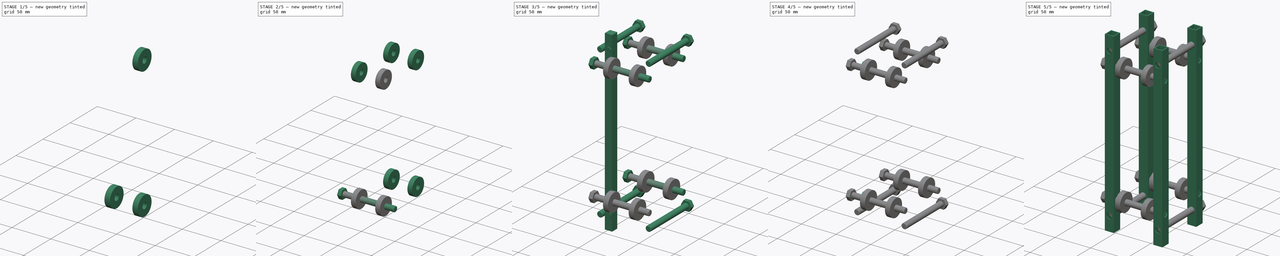
[diagram: build sequence overview — one tinted view per stage of 5, left to right]
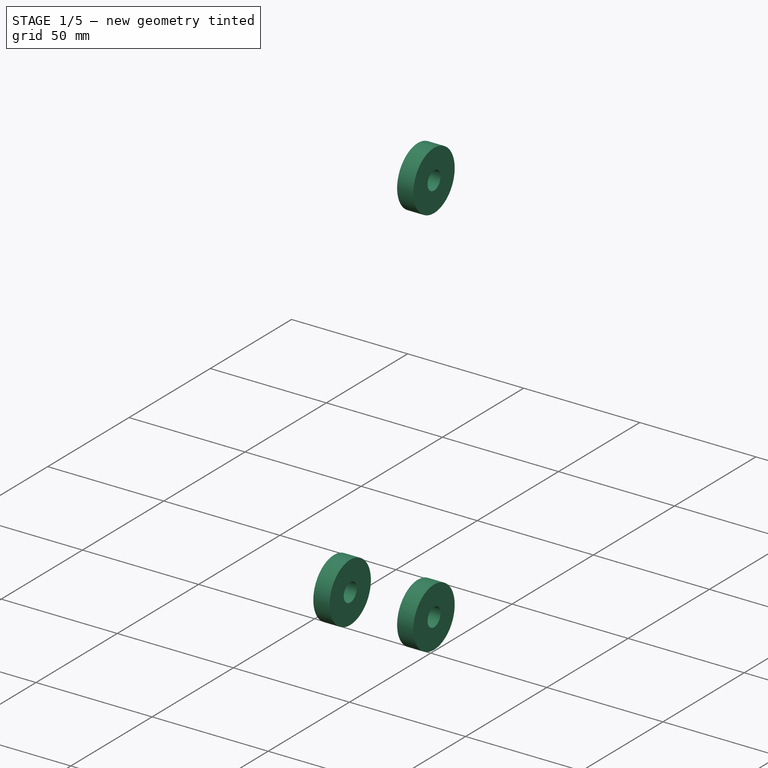
[diagram: stage 1 of 5 — iso view after this stage's code; geometry added in this stage tinted green]
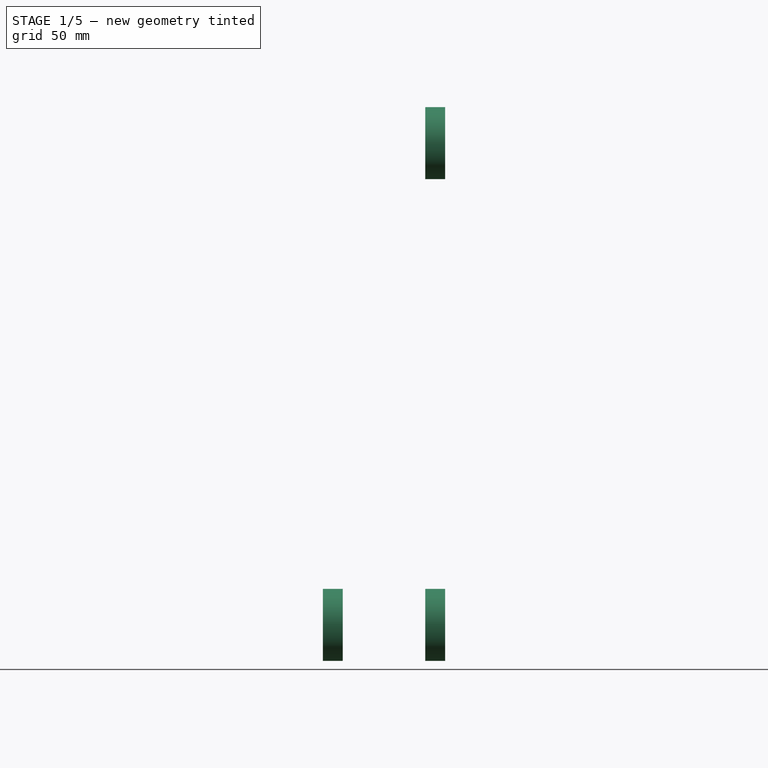
[diagram: stage 1 of 5 — front view after this stage's code; geometry added in this stage tinted green]
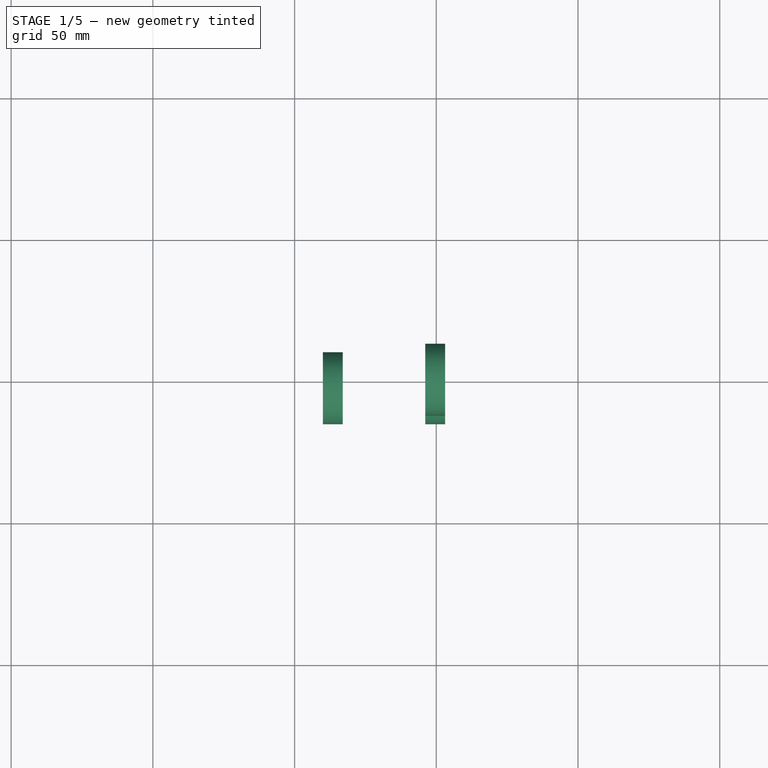
[diagram: stage 1 of 5 — top view after this stage's code; geometry added in this stage tinted green]
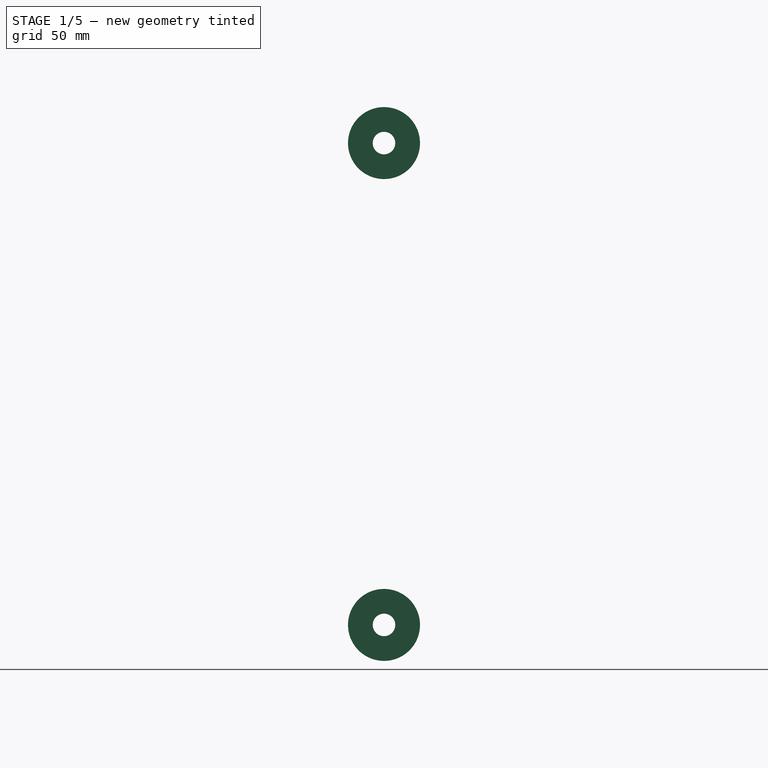
[diagram: stage 1 of 5 — right view after this stage's code; geometry added in this stage tinted green]
FCSTD DOCUMENT  (FreeCAD 0.18.4R)
Label: CARRITO
License: All rights reserved
LicenseURL: http://en.wikipedia.org/wiki/All_rights_reserved
objects: Part::Cut×16, Sketcher::SketchObject×10, Part::Extrusion×10, Part::Fillet×9, Part::Box×8, Part::Fuse×3, Part::MultiFuse×2
note: 58 computed .brp shape members not serialized (recipe doc carries the construction recipe); baked Part::Feature solids carry a one-line shape summary decoded from their .brp

FEATURE [Part::Box] Box  label="externo"
  AttacherType = Attacher::AttachEngine3D
  Height = 250
  Length = 12.7
  Width = 12.7
FEATURE [Sketcher::SketchObject] Sketch001
  MapMode = 5
  Placement = pos=(0,0,0) rot=(1,0,0;1.5708rad)
  Support = -> [Box]
  sketch-geometry (2):
    g0: Circle CenterX=6.35 CenterY=20 CenterZ=0 NormalX=0 NormalY=0 NormalZ=1 AngleXU=0 Radius=3.96875
    g1: Circle CenterX=6.35 CenterY=230 CenterZ=0 NormalX=0 NormalY=0 NormalZ=1 AngleXU=0 Radius=3.96875
  constraints (6):
    c: Radius(g0) = 3.96875
    c: DistanceX(g-1,g0) = 6.35
    c: DistanceY(g-1,g0) = 20
    c: Radius(g1) = 3.96875
    c: DistanceX(g-1,g1) = 6.35
    c: DistanceY(g0,g1) = 210
FEATURE [Part::Extrusion] Extrude
  Base = -> Sketch001
  Dir = (0,-1,2e-16)
  DirMode = 2
  FaceMakerClass = Part::FaceMakerBullseye
  LengthFwd = 12.7
  LengthRev = 0
  Reversed = true
  Solid = true
  Symmetric = false
FEATURE [Part::Box] Box001  label="interno"
  AttacherType = Attacher::AttachEngine3D
  Height = 250
  Length = 10.3
  Placement = pos=(1.2,1.2,0) rot=(0,0,1;0rad)
  Width = 10.3
FEATURE [Part::Cut] Cut
  Base = -> Box
  Tool = -> Box001
FEATURE [Part::Cut] Cut001
  Base = -> Cut
  Tool = -> Extrude
FEATURE [Sketcher::SketchObject] Sketch
  MapMode = 5
  Placement = pos=(12.7,0,0) rot=(0.57735,0.57735,0.57735;2.0944rad)
  Support = -> [Cut001]
  sketch-geometry (2):
    g0: Circle CenterX=6.35 CenterY=210 CenterZ=0 NormalX=0 NormalY=0 NormalZ=1 AngleXU=0 Radius=3.96875
    g1: Circle CenterX=6.35 CenterY=40 CenterZ=0 NormalX=0 NormalY=0 NormalZ=1 AngleXU=0 Radius=3.96875
  constraints (6):
    c: Equal(g0,g1)
    c: Radius(g1) = 3.96875
    c: DistanceX(g1,g0) = 0
    c: DistanceY(g-1,g1) = 40
    c: DistanceX(g-1,g1) = 6.35
    c: DistanceY(g1,g0) = 170
FEATURE [Part::Extrusion] Extrude001
  Base = -> Sketch
  Dir = (1,0,0)
  DirMode = 2
  FaceMakerClass = Part::FaceMakerBullseye
  LengthFwd = 12.7
  LengthRev = 0
  Reversed = true
  Solid = true
  Symmetric = false
FEATURE [Part::Cut] Cut013  label="Bal_ne"
  Base = -> Extrude
  Placement = pos=(46.1,-2.39,210) rot=(0,1,0;1.5708rad)
  Tool = -> Extrude001
FEATURE [Part::Cut] Cut014  label="Bal_sw"
  Base = -> Extrude
  Placement = pos=(10,-2.39,40) rot=(0,1,0;1.5708rad)
  Tool = -> Extrude001
FEATURE [Part::Cut] Cut015  label="Bal_se"
  Base = -> Extrude
  Placement = pos=(46.1,-2.39,40) rot=(0,1,0;1.5708rad)
  Tool = -> Extrude001
FEATURE [Part::Fuse] Fusion002  label="Bals_sur"
  Base = -> Cut014
  Tool = -> Cut015
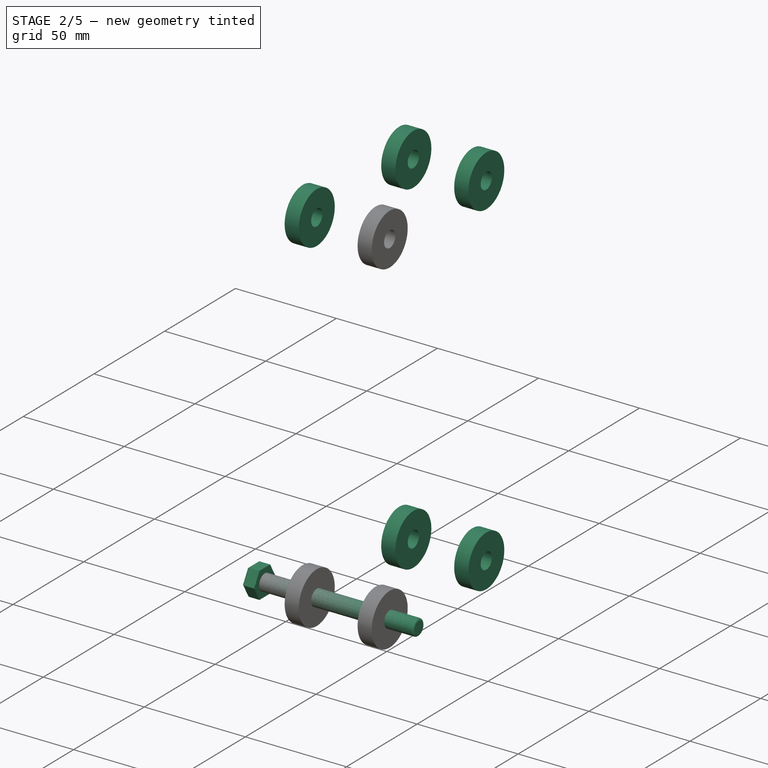
[diagram: stage 2 of 5 — iso view after this stage's code; geometry added in this stage tinted green]
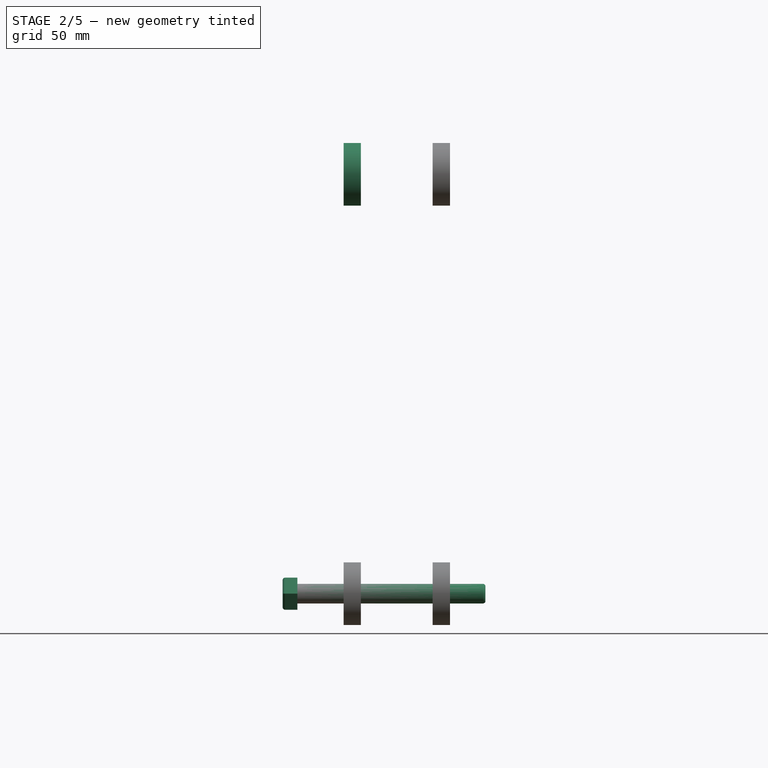
[diagram: stage 2 of 5 — front view after this stage's code; geometry added in this stage tinted green]
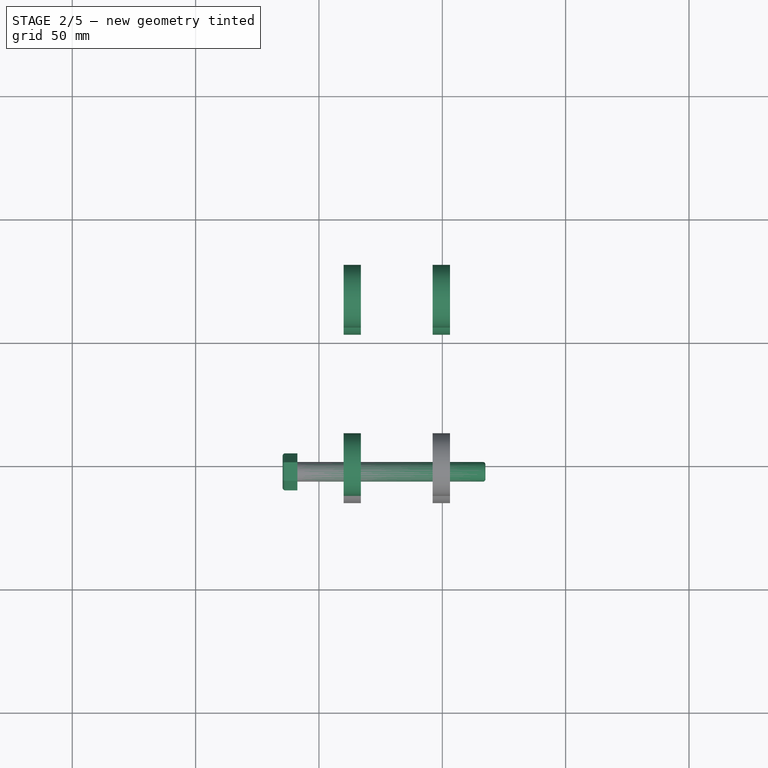
[diagram: stage 2 of 5 — top view after this stage's code; geometry added in this stage tinted green]
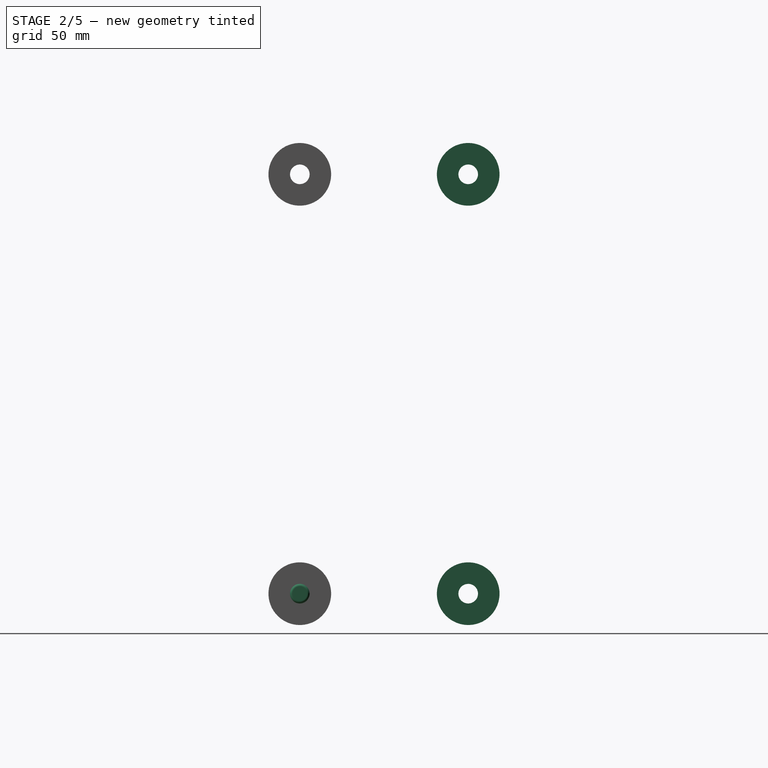
[diagram: stage 2 of 5 — right view after this stage's code; geometry added in this stage tinted green]
FEATURE [Sketcher::SketchObject] Sketch009
  sketch-geometry (7):
    g0: LineSegment StartX=7.7564e-12 StartY=-7.50555 StartZ=0 EndX=6.5 EndY=-3.75278 EndZ=0
    g1: LineSegment StartX=6.5 StartY=-3.75278 StartZ=0 EndX=6.5 EndY=3.75278 EndZ=0
    g2: LineSegment StartX=6.5 StartY=3.75278 StartZ=0 EndX=-1.7142e-12 EndY=7.50555 EndZ=0
    g3: LineSegment StartX=-1.7142e-12 StartY=7.50555 StartZ=0 EndX=-6.5 EndY=3.75278 EndZ=0
    g4: LineSegment StartX=-6.5 StartY=3.75278 StartZ=0 EndX=-6.5 EndY=-3.75278 EndZ=0
    g5: LineSegment StartX=-6.5 StartY=-3.75278 StartZ=0 EndX=7.7565e-12 EndY=-7.50555 EndZ=0
    g6: Circle [constr] CenterX=0 CenterY=0 CenterZ=0 NormalX=0 NormalY=0 NormalZ=1 AngleXU=0 Radius=7.50555
  constraints (16):
    c: Coincident(g0,g1)
    c: Coincident(g1,g2)
    c: Coincident(g2,g3)
    c: Coincident(g3,g4)
    c: Coincident(g4,g5)
    c: Coincident(g5,g0)
    c: Equal(g0, g1-g5) x5
    c: PointOnObject(g0,g6)
    c: PointOnObject(g1,g6)
    c: PointOnObject(g2,g6)
    c: PointOnObject(g3,g6)
    c: PointOnObject(g4,g6)
    c: PointOnObject(g5,g6)
    c: Vertical(g4)
    c: DistanceX(g4,g0) = 13
    c: Coincident(g6,g-1)
FEATURE [Part::Extrusion] Extrude008
  Base = -> Sketch009
  Dir = (0,0,1)
  DirMode = 2
  FaceMakerClass = Part::FaceMakerBullseye
  LengthFwd = 6
  LengthRev = 0
  Solid = true
  Symmetric = false
FEATURE [Sketcher::SketchObject] Sketch008
  MapMode = 5
  Placement = pos=(0,0,6) rot=(0,0,1;0rad)
  Support = -> [Extrude008]
  sketch-geometry (1):
    g0: Circle CenterX=0 CenterY=0 CenterZ=0 NormalX=0 NormalY=0 NormalZ=1 AngleXU=0 Radius=3.96875
  constraints (2):
    c: Radius(g0) = 3.96875
    c: Coincident(g0,g-1)
FEATURE [Part::Extrusion] Extrude009
  Base = -> Sketch008
  Dir = (0,0,1)
  DirMode = 2
  FaceMakerClass = Part::FaceMakerBullseye
  LengthFwd = 101.6
  LengthRev = 0
  Solid = true
  Symmetric = false
FEATURE [Part::Fuse] Fusion
  Base = -> Extrude008
  Tool = -> Extrude009
FEATURE [Part::Fillet] Fillet
  Base = -> Fusion
  Edges = 1 edges r=1: [Edge21]
  Placement = pos=(-36,0,0) rot=(0,0,1;0rad)
FEATURE [Part::Fillet] Fillet012  label="tocho"
  Base = -> Fillet
  Edges = 6 edges r=1: [Edge14,Edge16,Edge18,Edge20,Edge22,Edge23]
  Placement = pos=(-14.7312,-2.38125,4) rot=(0,1,0;1.5708rad)
FEATURE [Part::Cut] Cut012  label="Bal_nw"
  Base = -> Extrude
  Placement = pos=(10,-2.39,210) rot=(0,1,0;1.5708rad)
  Tool = -> Extrude001
FEATURE [Part::Fuse] Fusion001  label="Bals_norte"
  Base = -> Cut012
  Tool = -> Cut013
FEATURE [Part::MultiFuse] Fusion003  label="BalerosCara"
  Shapes = -> [Fusion002,Fusion001]
FEATURE [Part::MultiFuse] Fusion004  label="BalerosCara001"
  Placement = pos=(0,68.27,0) rot=(0,0,1;0rad)
  Shapes = -> [Fusion002,Fusion001]
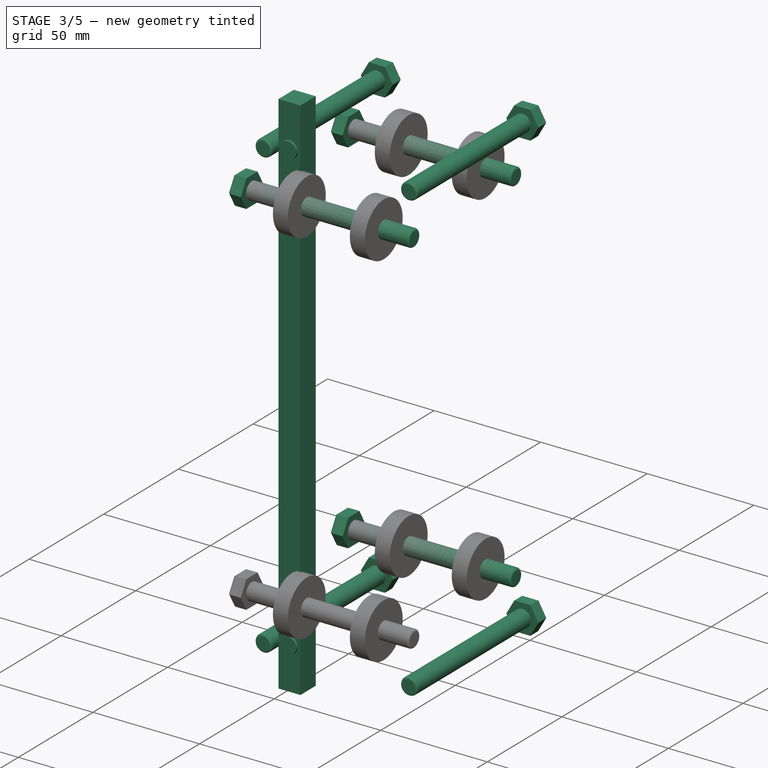
[diagram: stage 3 of 5 — iso view after this stage's code; geometry added in this stage tinted green]
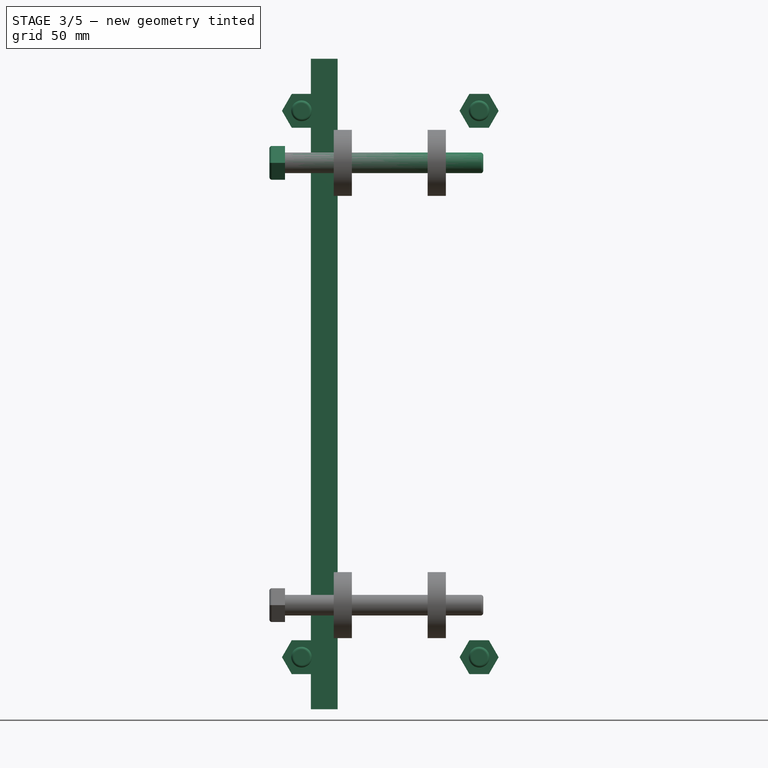
[diagram: stage 3 of 5 — front view after this stage's code; geometry added in this stage tinted green]
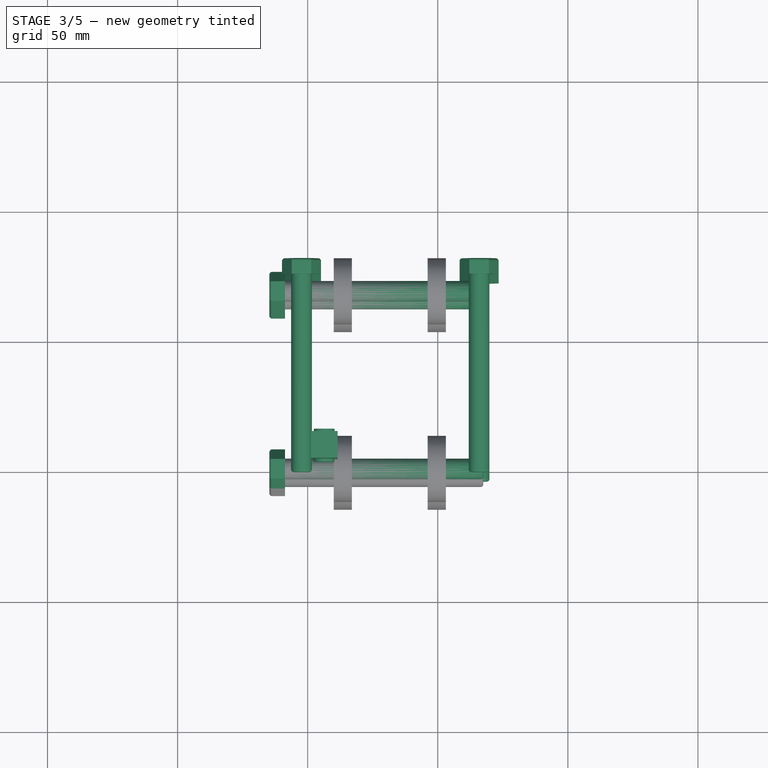
[diagram: stage 3 of 5 — top view after this stage's code; geometry added in this stage tinted green]
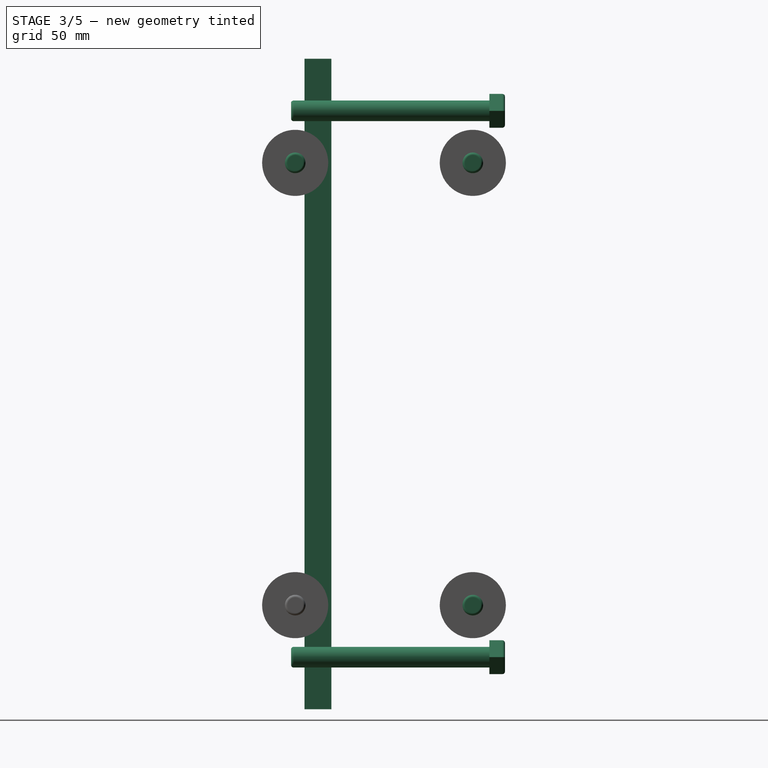
[diagram: stage 3 of 5 — right view after this stage's code; geometry added in this stage tinted green]
FEATURE [Part::Box] Box004  label="interno002"
  AttacherType = Attacher::AttachEngine3D
  Height = 250
  Length = 10.3
  Placement = pos=(1.2,1.2,0) rot=(0,0,1;0rad)
  Width = 10.3
FEATURE [Part::Box] Box007  label="externo003"
  AttacherType = Attacher::AttachEngine3D
  Height = 250
  Length = 12.7
  Width = 12.7
FEATURE [Sketcher::SketchObject] Sketch007
  MapMode = 5
  Placement = pos=(0,0,0) rot=(1,0,0;1.5708rad)
  Support = -> [Box007]
  sketch-geometry (2):
    g0: Circle CenterX=6.35 CenterY=20 CenterZ=0 NormalX=0 NormalY=0 NormalZ=1 AngleXU=0 Radius=3.96875
    g1: Circle CenterX=6.35 CenterY=230 CenterZ=0 NormalX=0 NormalY=0 NormalZ=1 AngleXU=0 Radius=3.96875
  constraints (6):
    c: Radius(g0) = 3.96875
    c: DistanceX(g-1,g0) = 6.35
    c: DistanceY(g-1,g0) = 20
    c: Radius(g1) = 3.96875
    c: DistanceX(g-1,g1) = 6.35
    c: DistanceY(g0,g1) = 210
FEATURE [Part::Extrusion] Extrude007
  Base = -> Sketch007
  Dir = (0,-1,2e-16)
  DirMode = 2
  FaceMakerClass = Part::FaceMakerBullseye
  LengthFwd = 12.7
  LengthRev = 0
  Reversed = true
  Solid = true
  Symmetric = false
FEATURE [Part::Fillet] Fillet001  label="tuno"
  Base = -> Fillet
  Edges = 6 edges r=1: [Edge14,Edge16,Edge18,Edge20,Edge22,Edge23]
  Placement = pos=(-14.7312,65.8812,4) rot=(0,1,0;1.5708rad)
FEATURE [Part::Fillet] Fillet004  label="tdos"
  Base = -> Fillet
  Edges = 6 edges r=1: [Edge14,Edge16,Edge18,Edge20,Edge22,Edge23]
  Placement = pos=(-14.7312,65.8812,174) rot=(0,1,0;1.5708rad)
FEATURE [Part::Fillet] Fillet005  label="ttres"
  Base = -> Fillet
  Edges = 6 edges r=1: [Edge14,Edge16,Edge18,Edge20,Edge22,Edge23]
  Placement = pos=(65.8812,78.2312,-16) rot=(0.57735,0.57735,-0.57735;2.0944rad)
FEATURE [Part::Fillet] Fillet006  label="tcuatro"
  Base = -> Fillet
  Edges = 6 edges r=1: [Edge14,Edge16,Edge18,Edge20,Edge22,Edge23]
  Placement = pos=(65.8812,78.2312,194) rot=(0.57735,0.57735,-0.57735;2.0944rad)
FEATURE [Part::Fillet] Fillet009  label="tcinco"
  Base = -> Fillet
  Edges = 6 edges r=1: [Edge14,Edge16,Edge18,Edge20,Edge22,Edge23]
  Placement = pos=(-2.38125,78.2312,194) rot=(0.57735,0.57735,-0.57735;2.0944rad)
FEATURE [Part::Fillet] Fillet010  label="tseis"
  Base = -> Fillet
  Edges = 6 edges r=1: [Edge14,Edge16,Edge18,Edge20,Edge22,Edge23]
  Placement = pos=(-14.7312,-2.38125,174) rot=(0,1,0;1.5708rad)
FEATURE [Part::Fillet] Fillet011  label="tsiete"
  Base = -> Fillet
  Edges = 6 edges r=1: [Edge14,Edge16,Edge18,Edge20,Edge22,Edge23]
  Placement = pos=(-2.38125,78.2312,-16) rot=(0.57735,0.57735,-0.57735;2.0944rad)
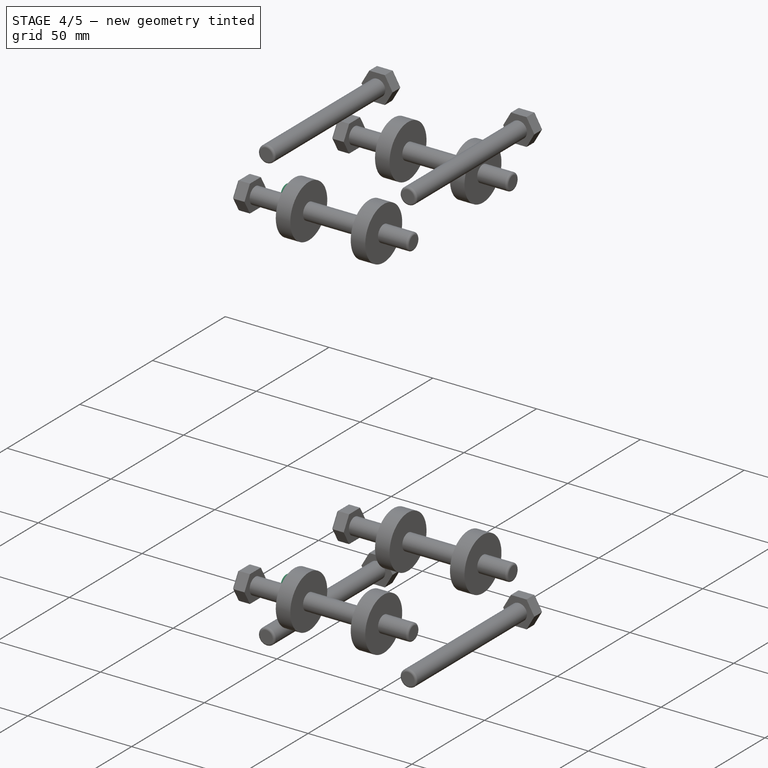
[diagram: stage 4 of 5 — iso view after this stage's code; geometry added in this stage tinted green]
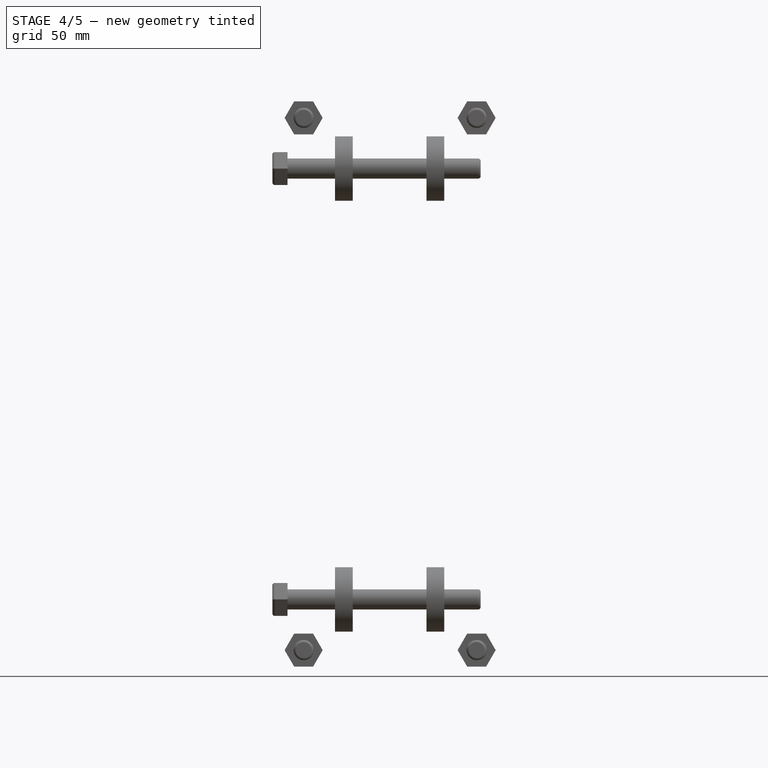
[diagram: stage 4 of 5 — front view after this stage's code; geometry added in this stage tinted green]
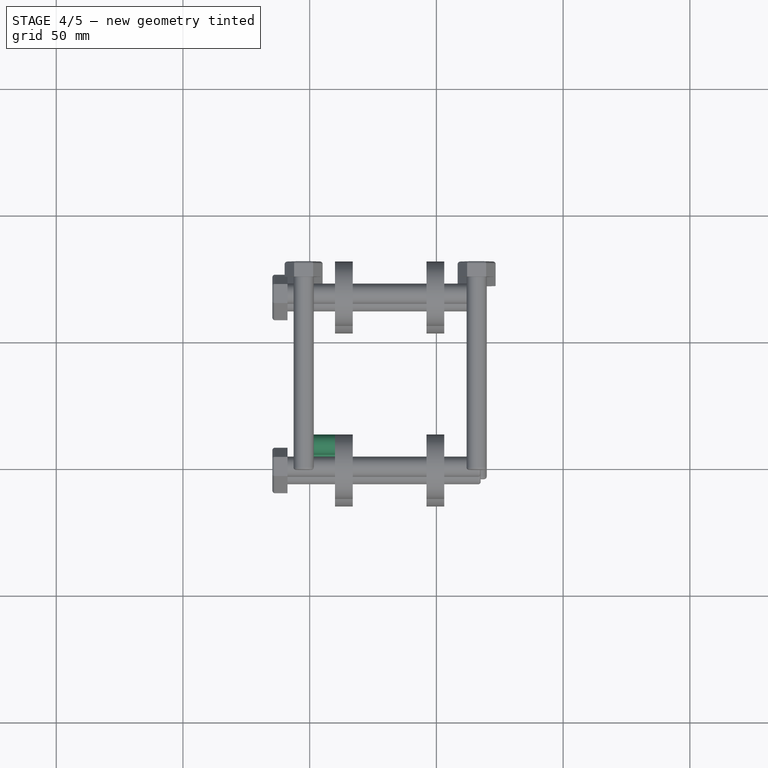
[diagram: stage 4 of 5 — top view after this stage's code; geometry added in this stage tinted green]
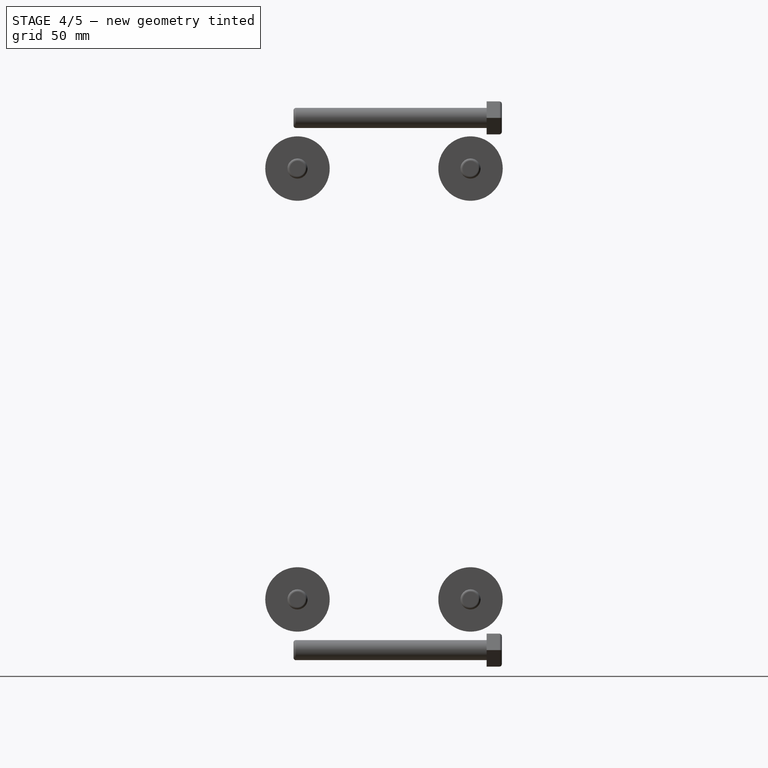
[diagram: stage 4 of 5 — right view after this stage's code; geometry added in this stage tinted green]
FEATURE [Part::Box] Box005  label="externo002"
  AttacherType = Attacher::AttachEngine3D
  Height = 250
  Length = 12.7
  Width = 12.7
FEATURE [Sketcher::SketchObject] Sketch005
  MapMode = 5
  Placement = pos=(0,0,0) rot=(1,0,0;1.5708rad)
  Support = -> [Box005]
  sketch-geometry (2):
    g0: Circle CenterX=6.35 CenterY=20 CenterZ=0 NormalX=0 NormalY=0 NormalZ=1 AngleXU=0 Radius=3.96875
    g1: Circle CenterX=6.35 CenterY=230 CenterZ=0 NormalX=0 NormalY=0 NormalZ=1 AngleXU=0 Radius=3.96875
  constraints (6):
    c: Radius(g0) = 3.96875
    c: DistanceX(g-1,g0) = 6.35
    c: DistanceY(g-1,g0) = 20
    c: Radius(g1) = 3.96875
    c: DistanceX(g-1,g1) = 6.35
    c: DistanceY(g0,g1) = 210
FEATURE [Part::Extrusion] Extrude004
  Base = -> Sketch005
  Dir = (0,-1,2e-16)
  DirMode = 2
  FaceMakerClass = Part::FaceMakerBullseye
  LengthFwd = 12.7
  LengthRev = 0
  Reversed = true
  Solid = true
  Symmetric = false
FEATURE [Part::Box] Box006  label="interno003"
  AttacherType = Attacher::AttachEngine3D
  Height = 250
  Length = 10.3
  Placement = pos=(1.2,1.2,0) rot=(0,0,1;0rad)
  Width = 10.3
FEATURE [Part::Cut] Cut008
  Base = -> Box005
  Tool = -> Box006
FEATURE [Part::Cut] Cut010
  Base = -> Cut008
  Tool = -> Extrude004
FEATURE [Sketcher::SketchObject] Sketch006
  MapMode = 5
  Placement = pos=(12.7,0,0) rot=(0.57735,0.57735,0.57735;2.0944rad)
  Support = -> [Cut010]
  sketch-geometry (2):
    g0: Circle CenterX=6.35 CenterY=210 CenterZ=0 NormalX=0 NormalY=0 NormalZ=1 AngleXU=0 Radius=3.96875
    g1: Circle CenterX=6.35 CenterY=40 CenterZ=0 NormalX=0 NormalY=0 NormalZ=1 AngleXU=0 Radius=3.96875
  constraints (6):
    c: Equal(g0,g1)
    c: Radius(g1) = 3.96875
    c: DistanceX(g1,g0) = 0
    c: DistanceY(g-1,g1) = 40
    c: DistanceX(g-1,g1) = 6.35
    c: DistanceY(g1,g0) = 170
FEATURE [Part::Extrusion] Extrude005
  Base = -> Sketch006
  Dir = (1,0,0)
  DirMode = 2
  FaceMakerClass = Part::FaceMakerBullseye
  LengthFwd = 12.7
  LengthRev = 0
  Reversed = true
  Solid = true
  Symmetric = false
FEATURE [Part::Cut] Cut006
  Base = -> Box007
  Tool = -> Box004
FEATURE [Part::Cut] Cut011
  Base = -> Cut006
  Tool = -> Extrude007
FEATURE [Sketcher::SketchObject] Sketch004
  MapMode = 5
  Placement = pos=(12.7,0,0) rot=(0.57735,0.57735,0.57735;2.0944rad)
  Support = -> [Cut011]
  sketch-geometry (2):
    g0: Circle CenterX=6.35 CenterY=210 CenterZ=0 NormalX=0 NormalY=0 NormalZ=1 AngleXU=0 Radius=3.96875
    g1: Circle CenterX=6.35 CenterY=40 CenterZ=0 NormalX=0 NormalY=0 NormalZ=1 AngleXU=0 Radius=3.96875
  constraints (6):
    c: Equal(g0,g1)
    c: Radius(g1) = 3.96875
    c: DistanceX(g1,g0) = 0
    c: DistanceY(g-1,g1) = 40
    c: DistanceX(g-1,g1) = 6.35
    c: DistanceY(g1,g0) = 170
FEATURE [Part::Extrusion] Extrude006
  Base = -> Sketch004
  Dir = (1,0,0)
  DirMode = 2
  FaceMakerClass = Part::FaceMakerBullseye
  LengthFwd = 12.7
  LengthRev = 0
  Reversed = true
  Solid = true
  Symmetric = false
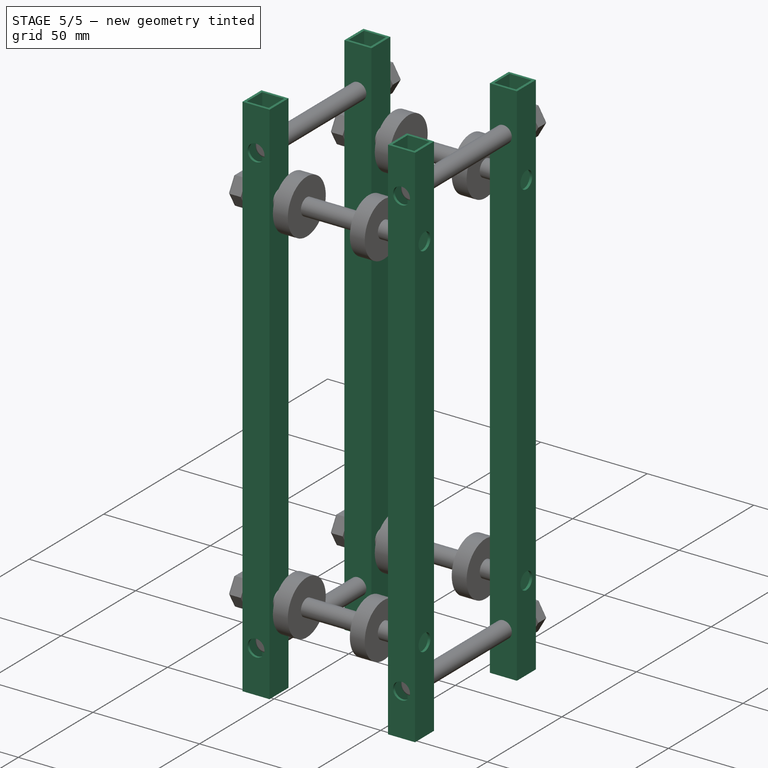
[diagram: stage 5 of 5 — iso view after this stage's code; geometry added in this stage tinted green]
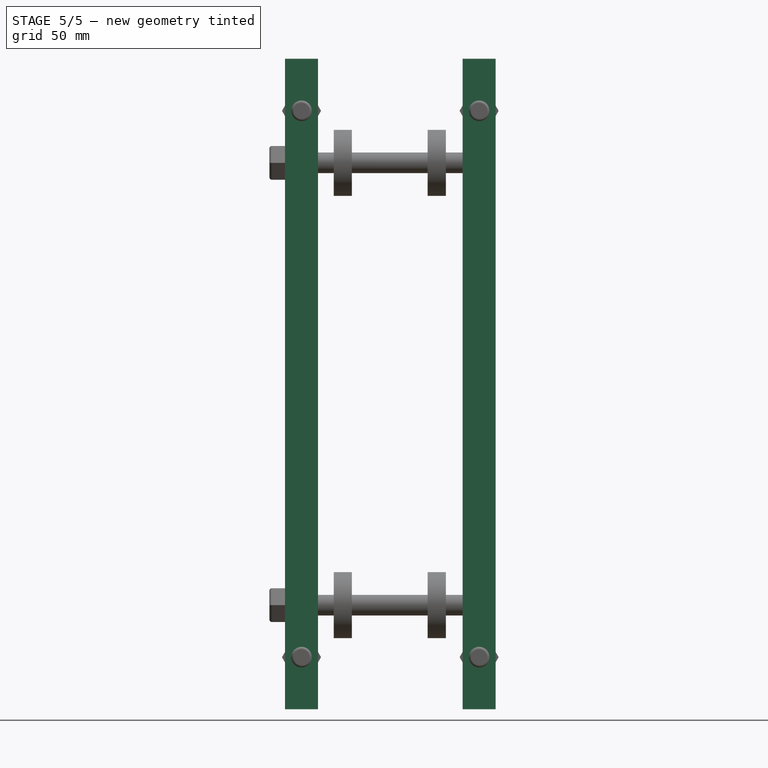
[diagram: stage 5 of 5 — front view after this stage's code; geometry added in this stage tinted green]
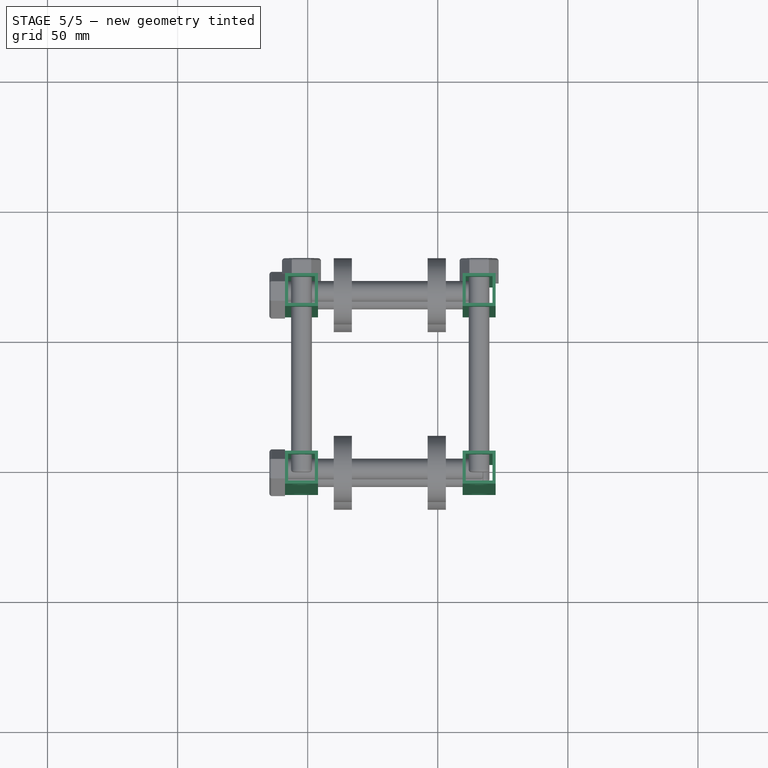
[diagram: stage 5 of 5 — top view after this stage's code; geometry added in this stage tinted green]
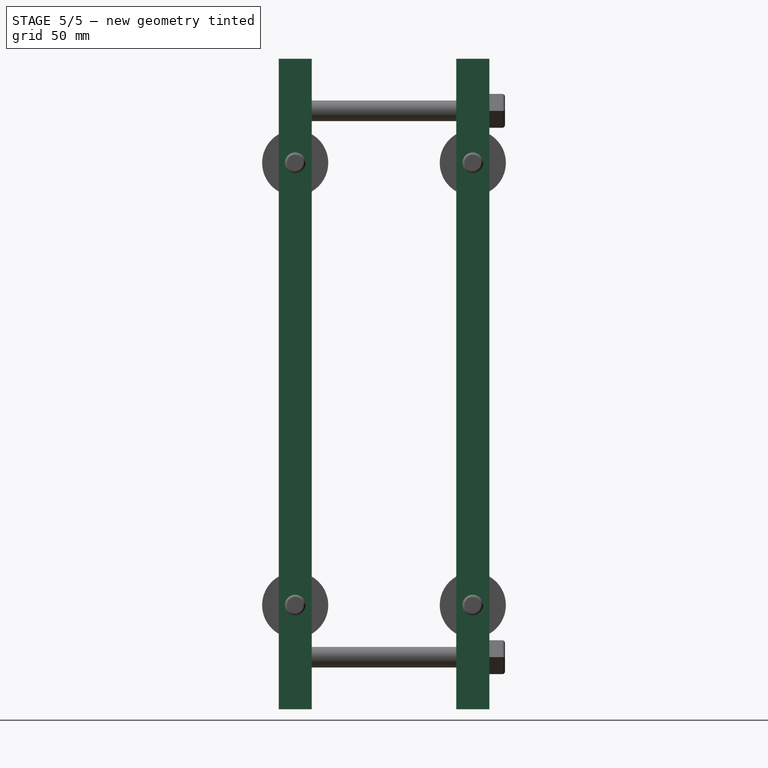
[diagram: stage 5 of 5 — right view after this stage's code; geometry added in this stage tinted green]
FEATURE [Part::Cut] Cut002  label="Barra1"
  Base = -> Cut001
  Placement = pos=(-8.73125,59.5312,0) rot=(0,0,1;0rad)
  Tool = -> Extrude001
FEATURE [Part::Box] Box002  label="externo001"
  AttacherType = Attacher::AttachEngine3D
  Height = 250
  Length = 12.7
  Width = 12.7
FEATURE [Sketcher::SketchObject] Sketch002
  MapMode = 5
  Placement = pos=(0,0,0) rot=(1,0,0;1.5708rad)
  Support = -> [Box002]
  sketch-geometry (2):
    g0: Circle CenterX=6.35 CenterY=20 CenterZ=0 NormalX=0 NormalY=0 NormalZ=1 AngleXU=0 Radius=3.96875
    g1: Circle CenterX=6.35 CenterY=230 CenterZ=0 NormalX=0 NormalY=0 NormalZ=1 AngleXU=0 Radius=3.96875
  constraints (6):
    c: Radius(g0) = 3.96875
    c: DistanceX(g-1,g0) = 6.35
    c: DistanceY(g-1,g0) = 20
    c: Radius(g1) = 3.96875
    c: DistanceX(g-1,g1) = 6.35
    c: DistanceY(g0,g1) = 210
FEATURE [Part::Extrusion] Extrude002
  Base = -> Sketch002
  Dir = (0,-1,2e-16)
  DirMode = 2
  FaceMakerClass = Part::FaceMakerBullseye
  LengthFwd = 12.7
  LengthRev = 0
  Reversed = true
  Solid = true
  Symmetric = false
FEATURE [Part::Box] Box003  label="interno001"
  AttacherType = Attacher::AttachEngine3D
  Height = 250
  Length = 10.3
  Placement = pos=(1.2,1.2,0) rot=(0,0,1;0rad)
  Width = 10.3
FEATURE [Part::Cut] Cut003
  Base = -> Box002
  Tool = -> Box003
FEATURE [Part::Cut] Cut005
  Base = -> Cut003
  Tool = -> Extrude002
FEATURE [Sketcher::SketchObject] Sketch003
  MapMode = 5
  Placement = pos=(12.7,0,0) rot=(0.57735,0.57735,0.57735;2.0944rad)
  Support = -> [Cut005]
  sketch-geometry (2):
    g0: Circle CenterX=6.35 CenterY=210 CenterZ=0 NormalX=0 NormalY=0 NormalZ=1 AngleXU=0 Radius=3.96875
    g1: Circle CenterX=6.35 CenterY=40 CenterZ=0 NormalX=0 NormalY=0 NormalZ=1 AngleXU=0 Radius=3.96875
  constraints (6):
    c: Equal(g0,g1)
    c: Radius(g1) = 3.96875
    c: DistanceX(g1,g0) = 0
    c: DistanceY(g-1,g1) = 40
    c: DistanceX(g-1,g1) = 6.35
    c: DistanceY(g1,g0) = 170
FEATURE [Part::Extrusion] Extrude003
  Base = -> Sketch003
  Dir = (1,0,0)
  DirMode = 2
  FaceMakerClass = Part::FaceMakerBullseye
  LengthFwd = 12.7
  LengthRev = 0
  Reversed = true
  Solid = true
  Symmetric = false
FEATURE [Part::Cut] Cut004  label="Barra2"
  Base = -> Cut005
  Placement = pos=(59.5312,59.5312,0) rot=(0,0,1;0rad)
  Tool = -> Extrude003
FEATURE [Part::Cut] Cut009  label="Barra4"
  Base = -> Cut010
  Placement = pos=(-8.73125,-8.73125,0) rot=(0,0,1;0rad)
  Tool = -> Extrude005
FEATURE [Part::Cut] Cut007  label="Barra3"
  Base = -> Cut011
  Placement = pos=(59.5312,-8.73125,0) rot=(0,0,1;0rad)
  Tool = -> Extrude006
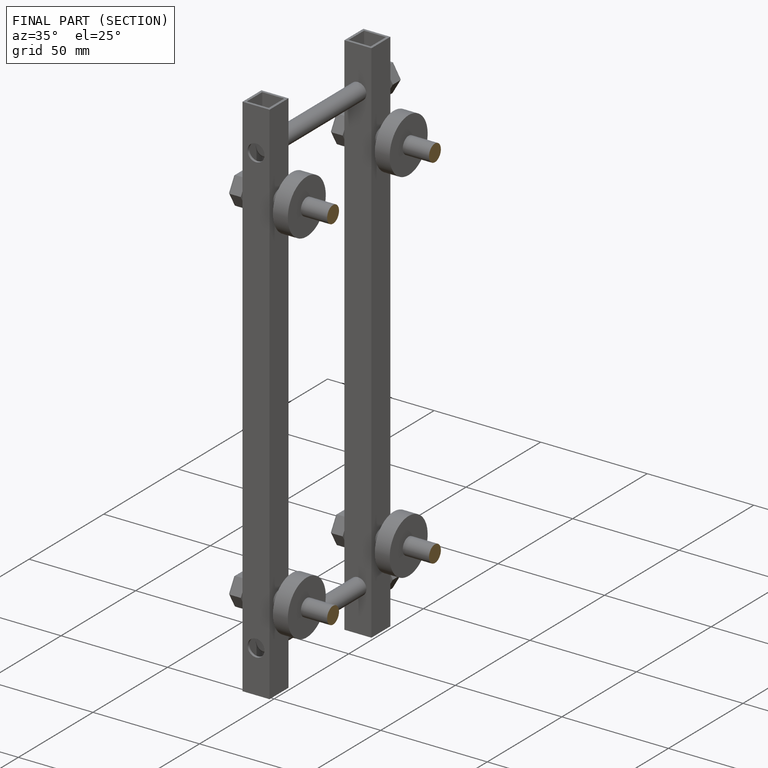
[diagram: finished part — half-section view (interior)]
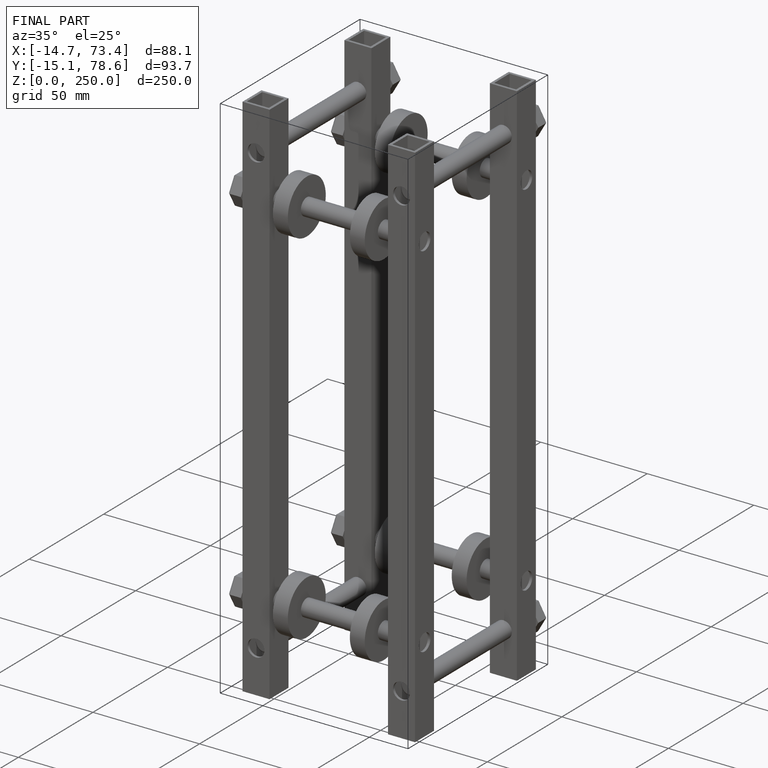
[diagram: finished part — iso view with bounding-box wireframe]
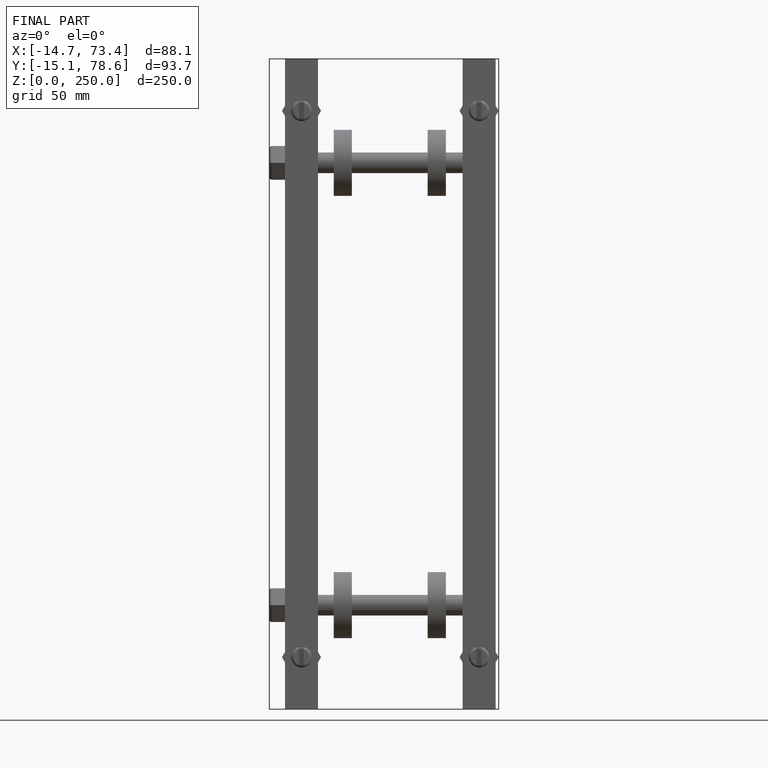
[diagram: finished part — front view with bounding-box wireframe]
